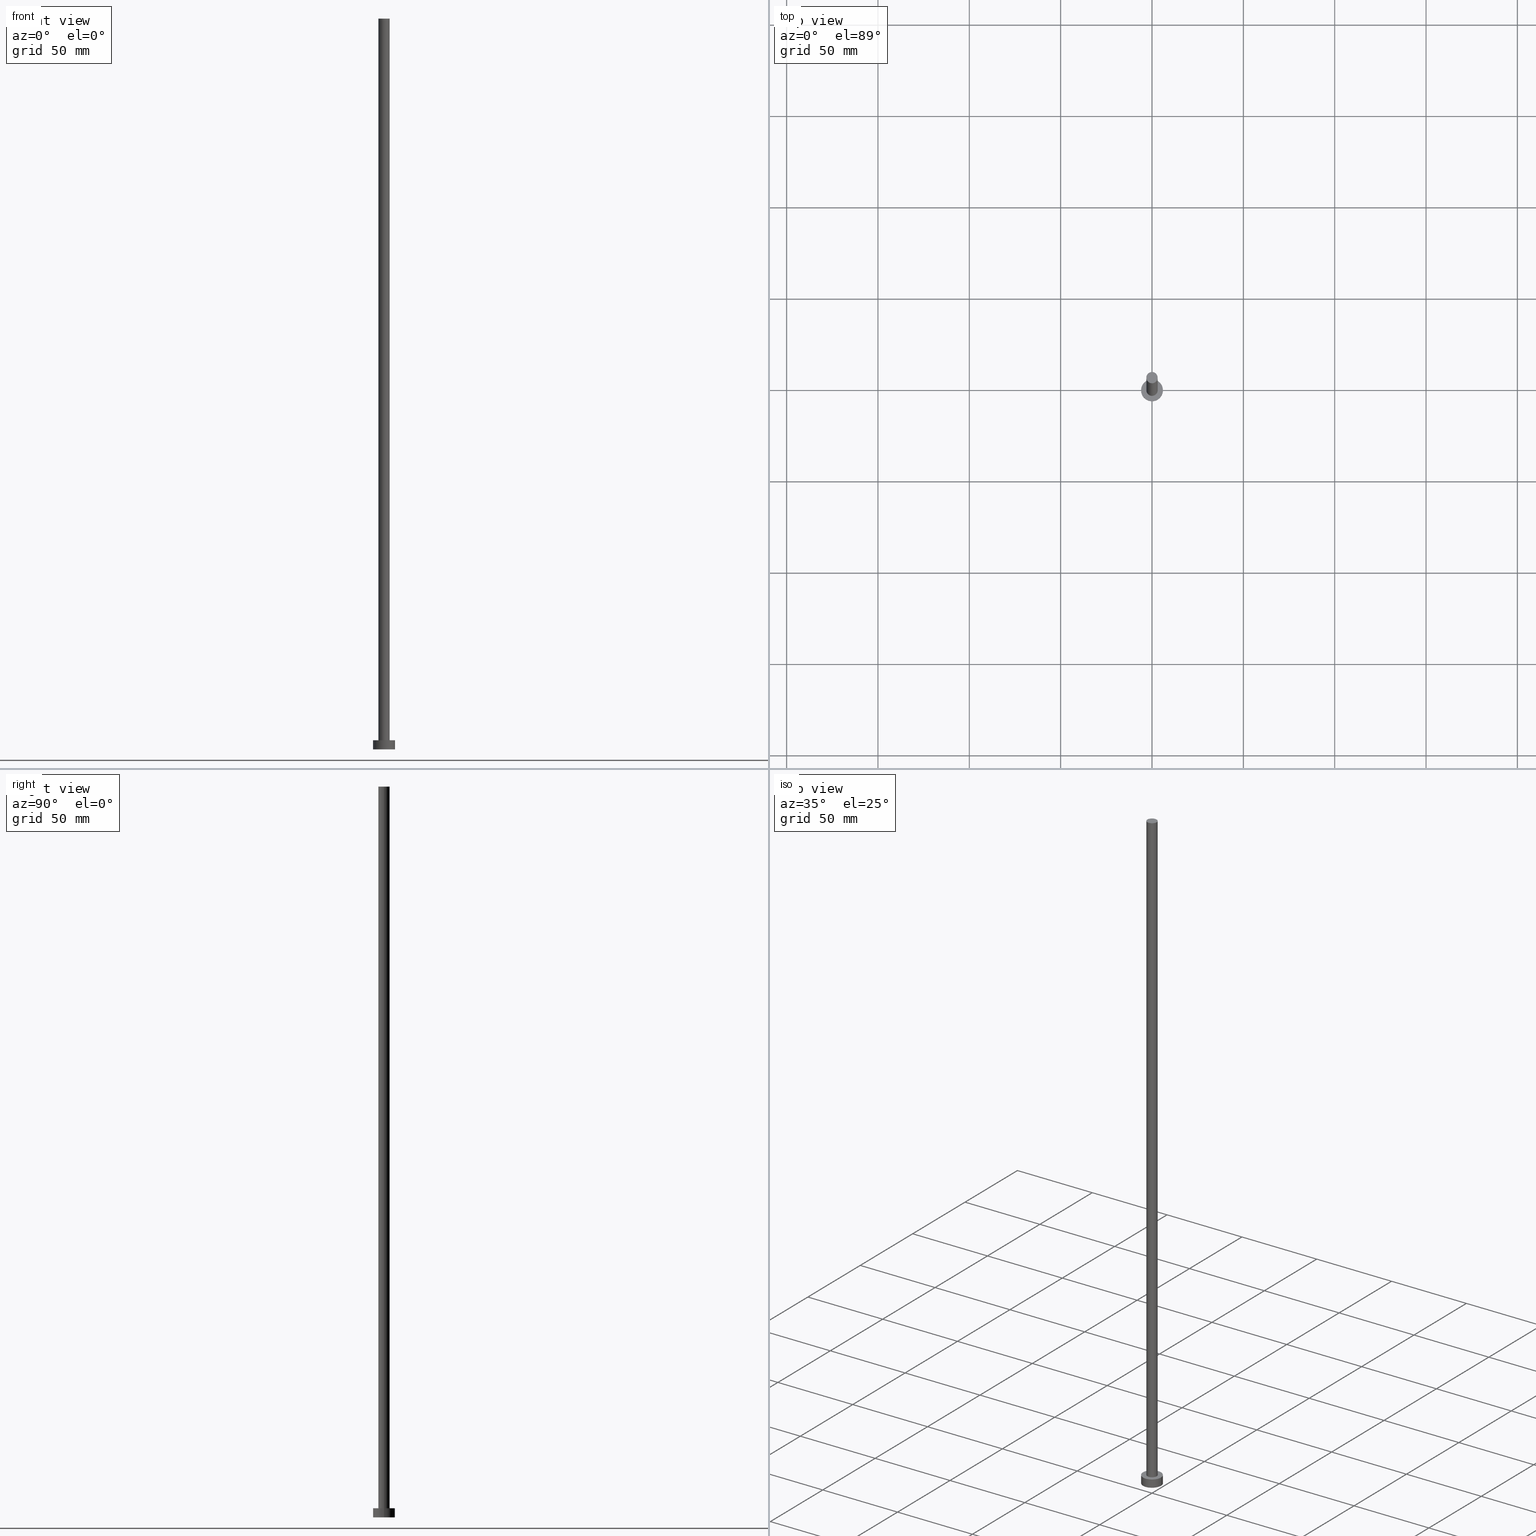
[diagram: canonical four-view strip — front | top / right | iso, engineering-drawing reading convention]
A machine part, canonical four-view strip (front | top / right | iso — engineering-drawing reading convention). The complete STEP part file that produces these views, byte-faithful:
ISO-10303-21;
HEADER;
FILE_DESCRIPTION (( 'STEP AP203' ),
    '1' );
FILE_NAME ('118b.STEP',
    '2023-02-13T12:35:11',
    ( '' ),
    ( '' ),
    'SwSTEP 2.0',
    'SolidWorks 2019',
    '' );
FILE_SCHEMA (( 'CONFIG_CONTROL_DESIGN' ));
ENDSEC;

DATA;
#1 = EDGE_LOOP ( 'NONE', ( #7, #201, #202, #82 ) ) ;
#2 = VECTOR ( 'NONE', #131, 1000.000000000000000 ) ;
#3 = PRODUCT ( '118b', '118b', '', ( #13 ) ) ;
#4 = LINE ( 'NONE', #10, #46 ) ;
#5 = VERTEX_POINT ( 'NONE', #47 ) ;
#6 = PERSON_AND_ORGANIZATION ( #57, #207 ) ;
#7 = ORIENTED_EDGE ( 'NONE', *, *, #162, .F. ) ;
#8 = APPROVAL ( #85, 'NEUR�EN�' ) ;
#9 = CALENDAR_DATE ( 2023, 13, 2 ) ;
#10 = CARTESIAN_POINT ( 'NONE',  ( -3.100000000000000089, 0.000000000000000000, 400.0000000000000000 ) ) ;
#11 = PERSON_AND_ORGANIZATION ( #57, #207 ) ;
#12 = ORIENTED_EDGE ( 'NONE', *, *, #97, .F. ) ;
#13 = MECHANICAL_CONTEXT ( 'NONE', #79, 'mechanical' ) ;
#14 = DIRECTION ( 'NONE',  ( -0.000000000000000000, -0.000000000000000000, -1.000000000000000000 ) ) ;
#15 = CC_DESIGN_APPROVAL ( #179, ( #159 ) ) ;
#16 = CC_DESIGN_PERSON_AND_ORGANIZATION_ASSIGNMENT ( #11, #62, ( #136 ) ) ;
#17 = CARTESIAN_POINT ( 'NONE',  ( 0.000000000000000000, 0.000000000000000000, 5.000000000000000000 ) ) ;
#18 = CC_DESIGN_PERSON_AND_ORGANIZATION_ASSIGNMENT ( #6, #83, ( #136 ) ) ;
#19 = DIRECTION ( 'NONE',  ( -0.000000000000000000, -0.000000000000000000, -1.000000000000000000 ) ) ;
#20 = APPROVAL_PERSON_ORGANIZATION ( #60, #8, #186 ) ;
#21 = LOCAL_TIME ( 13, 35, 11.00000000000000000, #142 ) ;
#22 = EDGE_CURVE ( 'NONE', #138, #5, #156, .T. ) ;
#23 = VERTEX_POINT ( 'NONE', #248 ) ;
#24 = CIRCLE ( 'NONE', #255, 6.000000000000000888 ) ;
#25 = EDGE_LOOP ( 'NONE', ( #68, #204 ) ) ;
#26 = ADVANCED_FACE ( 'NONE', ( #135 ), #128, .T. ) ;
#27 = CIRCLE ( 'NONE', #196, 3.100000000000000089 ) ;
#28 = ORIENTED_EDGE ( 'NONE', *, *, #253, .T. ) ;
#29 =( NAMED_UNIT ( * ) SI_UNIT ( $, .STERADIAN. ) SOLID_ANGLE_UNIT ( ) );
#30 = CARTESIAN_POINT ( 'NONE',  ( 0.000000000000000000, 0.000000000000000000, 400.0000000000000000 ) ) ;
#31 = DIRECTION ( 'NONE',  ( -1.000000000000000000, 0.000000000000000000, 0.000000000000000000 ) ) ;
#32 = DATE_TIME_ROLE ( 'classification_date' ) ;
#33 = ADVANCED_FACE ( 'NONE', ( #59 ), #165, .T. ) ;
#34 = ORIENTED_EDGE ( 'NONE', *, *, #109, .T. ) ;
#35 = DIRECTION ( 'NONE',  ( -0.000000000000000000, -0.000000000000000000, -1.000000000000000000 ) ) ;
#36 = CIRCLE ( 'NONE', #95, 3.100000000000000089 ) ;
#37 = DIRECTION ( 'NONE',  ( 1.000000000000000000, 0.000000000000000000, 0.000000000000000000 ) ) ;
#38 = LINE ( 'NONE', #212, #67 ) ;
#39 = AXIS2_PLACEMENT_3D ( 'NONE', #108, #14, #194 ) ;
#40 = ADVANCED_FACE ( 'NONE', ( #104 ), #51, .T. ) ;
#41 = AXIS2_PLACEMENT_3D ( 'NONE', #187, #61, #124 ) ;
#42 = DIRECTION ( 'NONE',  ( 1.000000000000000000, 0.000000000000000000, 0.000000000000000000 ) ) ;
#43 = PERSON_AND_ORGANIZATION_ROLE ( 'classification_officer' ) ;
#44 = DIRECTION ( 'NONE',  ( 1.000000000000000000, 0.000000000000000000, -0.000000000000000000 ) ) ;
#45 = PERSON_AND_ORGANIZATION_ROLE ( 'design_owner' ) ;
#46 = VECTOR ( 'NONE', #80, 1000.000000000000000 ) ;
#47 = CARTESIAN_POINT ( 'NONE',  ( -3.100000000000000089, 0.000000000000000000, 5.000000000000000000 ) ) ;
#48 = DATE_AND_TIME ( #145, #216 ) ;
#49 = ORIENTED_EDGE ( 'NONE', *, *, #112, .T. ) ;
#50 = PERSON_AND_ORGANIZATION ( #57, #207 ) ;
#51 = CYLINDRICAL_SURFACE ( 'NONE', #220, 3.100000000000000089 ) ;
#52 = LINE ( 'NONE', #132, #99 ) ;
#53 = CARTESIAN_POINT ( 'NONE',  ( 3.100000000000000089, 3.796405077356793932E-16, 5.000000000000000000 ) ) ;
#54 = AXIS2_PLACEMENT_3D ( 'NONE', #129, #94, #37 ) ;
#55 = CARTESIAN_POINT ( 'NONE',  ( 0.000000000000000000, 0.000000000000000000, 400.0000000000000000 ) ) ;
#56 = APPROVAL ( #170, 'NEUR�EN�' ) ;
#57 = PERSON ( 'NEUR�EN�', 'NEUR�EN�', 'NEUR�EN�', ('NEUR�EN�'), ('NEUR�EN�'), ('NEUR�EN�') ) ;
#58 = AXIS2_PLACEMENT_3D ( 'NONE', #166, #81, #122 ) ;
#59 = FACE_OUTER_BOUND ( 'NONE', #245, .T. ) ;
#60 = PERSON_AND_ORGANIZATION ( #57, #207 ) ;
#61 = DIRECTION ( 'NONE',  ( 0.000000000000000000, 0.000000000000000000, 1.000000000000000000 ) ) ;
#62 = PERSON_AND_ORGANIZATION_ROLE ( 'design_supplier' ) ;
#63 = DIRECTION ( 'NONE',  ( -1.000000000000000000, 0.000000000000000000, 0.000000000000000000 ) ) ;
#64 = DATE_AND_TIME ( #139, #90 ) ;
#65 = PLANE ( 'NONE',  #227 ) ;
#66 = COORDINATED_UNIVERSAL_TIME_OFFSET ( 1, 0, .AHEAD. ) ;
#67 = VECTOR ( 'NONE', #35, 1000.000000000000000 ) ;
#68 = ORIENTED_EDGE ( 'NONE', *, *, #198, .T. ) ;
#69 = APPROVAL_DATE_TIME ( #251, #179 ) ;
#70 = DIRECTION ( 'NONE',  ( -0.000000000000000000, -0.000000000000000000, -1.000000000000000000 ) ) ;
#71 = CIRCLE ( 'NONE', #218, 6.000000000000000888 ) ;
#72 = CARTESIAN_POINT ( 'NONE',  ( -6.000000000000000888, 0.000000000000000000, 5.000000000000000000 ) ) ;
#73 = DIRECTION ( 'NONE',  ( -1.000000000000000000, 0.000000000000000000, 0.000000000000000000 ) ) ;
#74 = AXIS2_PLACEMENT_3D ( 'NONE', #55, #92, #214 ) ;
#75 = AXIS2_PLACEMENT_3D ( 'NONE', #184, #84, #44 ) ;
#76 = APPROVAL_PERSON_ORGANIZATION ( #50, #56, #243 ) ;
#77 = ORIENTED_EDGE ( 'NONE', *, *, #253, .F. ) ;
#78 = AXIS2_PLACEMENT_3D ( 'NONE', #140, #188, #102 ) ;
#79 = APPLICATION_CONTEXT ( 'configuration controlled 3d designs of mechanical parts and assemblies' ) ;
#80 = DIRECTION ( 'NONE',  ( -0.000000000000000000, -0.000000000000000000, -1.000000000000000000 ) ) ;
#81 = DIRECTION ( 'NONE',  ( 0.000000000000000000, 0.000000000000000000, 1.000000000000000000 ) ) ;
#82 = ORIENTED_EDGE ( 'NONE', *, *, #172, .F. ) ;
#83 = PERSON_AND_ORGANIZATION_ROLE ( 'creator' ) ;
#84 = DIRECTION ( 'NONE',  ( 0.000000000000000000, 0.000000000000000000, 1.000000000000000000 ) ) ;
#85 = APPROVAL_STATUS ( 'not_yet_approved' ) ;
#86 = DIRECTION ( 'NONE',  ( 0.000000000000000000, 0.000000000000000000, 1.000000000000000000 ) ) ;
#87 = PERSON_AND_ORGANIZATION_ROLE ( 'creator' ) ;
#88 = EDGE_LOOP ( 'NONE', ( #161, #224, #226, #250 ) ) ;
#89 = COORDINATED_UNIVERSAL_TIME_OFFSET ( 1, 0, .AHEAD. ) ;
#90 = LOCAL_TIME ( 13, 35, 11.00000000000000000, #103 ) ;
#91 = FACE_OUTER_BOUND ( 'NONE', #1, .T. ) ;
#92 = DIRECTION ( 'NONE',  ( 0.000000000000000000, 0.000000000000000000, 1.000000000000000000 ) ) ;
#93 = CARTESIAN_POINT ( 'NONE',  ( 6.000000000000000888, 7.347880794884120722E-16, 0.000000000000000000 ) ) ;
#94 = DIRECTION ( 'NONE',  ( 0.000000000000000000, 0.000000000000000000, 1.000000000000000000 ) ) ;
#95 = AXIS2_PLACEMENT_3D ( 'NONE', #17, #175, #197 ) ;
#96 = PRODUCT_DEFINITION ( 'NEZN�M�', '', #136, #217 ) ;
#97 = EDGE_CURVE ( 'NONE', #167, #219, #105, .T. ) ;
#98 = DIRECTION ( 'NONE',  ( -0.000000000000000000, -0.000000000000000000, -1.000000000000000000 ) ) ;
#99 = VECTOR ( 'NONE', #70, 1000.000000000000000 ) ;
#100 = APPLICATION_PROTOCOL_DEFINITION ( 'international standard', 'config_control_design', 1994, #79 ) ;
#101 = VERTEX_POINT ( 'NONE', #211 ) ;
#102 = DIRECTION ( 'NONE',  ( 1.000000000000000000, 0.000000000000000000, 0.000000000000000000 ) ) ;
#103 = COORDINATED_UNIVERSAL_TIME_OFFSET ( 1, 0, .AHEAD. ) ;
#104 = FACE_OUTER_BOUND ( 'NONE', #134, .T. ) ;
#105 = CIRCLE ( 'NONE', #78, 6.000000000000000888 ) ;
#106 = APPROVAL_ROLE ( '' ) ;
#107 = CYLINDRICAL_SURFACE ( 'NONE', #39, 3.100000000000000089 ) ;
#108 = CARTESIAN_POINT ( 'NONE',  ( 0.000000000000000000, 0.000000000000000000, 400.0000000000000000 ) ) ;
#109 = EDGE_CURVE ( 'NONE', #101, #5, #4, .T. ) ;
#110 = CYLINDRICAL_SURFACE ( 'NONE', #199, 6.000000000000000888 ) ;
#111 = FACE_OUTER_BOUND ( 'NONE', #118, .T. ) ;
#112 = EDGE_CURVE ( 'NONE', #123, #101, #27, .T. ) ;
#113 = CC_DESIGN_PERSON_AND_ORGANIZATION_ASSIGNMENT ( #127, #87, ( #96 ) ) ;
#114 = ADVANCED_FACE ( 'NONE', ( #169, #121 ), #65, .T. ) ;
#115 = AXIS2_PLACEMENT_3D ( 'NONE', #240, #98, #31 ) ;
#116 = ORIENTED_EDGE ( 'NONE', *, *, #158, .T. ) ;
#117 = LOCAL_TIME ( 13, 35, 11.00000000000000000, #89 ) ;
#118 = EDGE_LOOP ( 'NONE', ( #143, #147, #34, #28 ) ) ;
#119 = EDGE_CURVE ( 'NONE', #23, #167, #126, .T. ) ;
#120 = CIRCLE ( 'NONE', #74, 3.100000000000000089 ) ;
#121 = FACE_OUTER_BOUND ( 'NONE', #25, .T. ) ;
#122 = DIRECTION ( 'NONE',  ( 1.000000000000000000, 0.000000000000000000, 0.000000000000000000 ) ) ;
#123 = VERTEX_POINT ( 'NONE', #174 ) ;
#124 = DIRECTION ( 'NONE',  ( 1.000000000000000000, 0.000000000000000000, 0.000000000000000000 ) ) ;
#125 =( NAMED_UNIT ( * ) PLANE_ANGLE_UNIT ( ) SI_UNIT ( $, .RADIAN. ) );
#126 = LINE ( 'NONE', #209, #2 ) ;
#127 = PERSON_AND_ORGANIZATION ( #57, #207 ) ;
#128 = CYLINDRICAL_SURFACE ( 'NONE', #115, 6.000000000000000888 ) ;
#129 = CARTESIAN_POINT ( 'NONE',  ( 0.000000000000000000, 0.000000000000000000, 5.000000000000000000 ) ) ;
#130 = ADVANCED_FACE ( 'NONE', ( #150 ), #176, .F. ) ;
#131 = DIRECTION ( 'NONE',  ( -0.000000000000000000, -0.000000000000000000, -1.000000000000000000 ) ) ;
#132 = CARTESIAN_POINT ( 'NONE',  ( 3.100000000000000089, 3.796405077356793932E-16, 400.0000000000000000 ) ) ;
#133 = ORIENTED_EDGE ( 'NONE', *, *, #109, .F. ) ;
#134 = EDGE_LOOP ( 'NONE', ( #206, #116, #154, #133 ) ) ;
#135 = FACE_OUTER_BOUND ( 'NONE', #88, .T. ) ;
#136 = PRODUCT_DEFINITION_FORMATION_WITH_SPECIFIED_SOURCE ( 'LIBOVOLN�', '', #3, .NOT_KNOWN. ) ;
#137 = APPROVAL_DATE_TIME ( #231, #8 ) ;
#138 = VERTEX_POINT ( 'NONE', #53 ) ;
#139 = CALENDAR_DATE ( 2023, 13, 2 ) ;
#140 = CARTESIAN_POINT ( 'NONE',  ( 0.000000000000000000, 0.000000000000000000, 0.000000000000000000 ) ) ;
#141 = CLOSED_SHELL ( 'NONE', ( #40, #189, #26, #114, #130, #238, #33 ) ) ;
#142 = COORDINATED_UNIVERSAL_TIME_OFFSET ( 1, 0, .AHEAD. ) ;
#143 = ORIENTED_EDGE ( 'NONE', *, *, #158, .F. ) ;
#144 = CC_DESIGN_APPROVAL ( #8, ( #136 ) ) ;
#145 = CALENDAR_DATE ( 2023, 13, 2 ) ;
#146 = CC_DESIGN_DATE_AND_TIME_ASSIGNMENT ( #48, #32, ( #159 ) ) ;
#147 = ORIENTED_EDGE ( 'NONE', *, *, #200, .F. ) ;
#148 = SHAPE_DEFINITION_REPRESENTATION ( #153, #160 ) ;
#149 = DIRECTION ( 'NONE',  ( 0.000000000000000000, 0.000000000000000000, 1.000000000000000000 ) ) ;
#150 = FACE_OUTER_BOUND ( 'NONE', #171, .T. ) ;
#151 = CARTESIAN_POINT ( 'NONE',  ( 0.000000000000000000, 0.000000000000000000, 5.000000000000000000 ) ) ;
#152 = CC_DESIGN_SECURITY_CLASSIFICATION ( #159, ( #136 ) ) ;
#153 = PRODUCT_DEFINITION_SHAPE ( 'NONE', 'NONE',  #96 ) ;
#154 = ORIENTED_EDGE ( 'NONE', *, *, #22, .T. ) ;
#155 = EDGE_CURVE ( 'NONE', #219, #167, #71, .T. ) ;
#156 = CIRCLE ( 'NONE', #41, 3.100000000000000089 ) ;
#157 = ORIENTED_EDGE ( 'NONE', *, *, #200, .T. ) ;
#158 = EDGE_CURVE ( 'NONE', #123, #138, #52, .T. ) ;
#159 = SECURITY_CLASSIFICATION ( '', '', #210 ) ;
#160 = ADVANCED_BREP_SHAPE_REPRESENTATION ( '118b', ( #164, #58 ), #244 ) ;
#161 = ORIENTED_EDGE ( 'NONE', *, *, #119, .F. ) ;
#162 = EDGE_CURVE ( 'NONE', #23, #182, #177, .T. ) ;
#163 = DATE_TIME_ROLE ( 'creation_date' ) ;
#164 = MANIFOLD_SOLID_BREP ( 'P�idat vysunut�m3', #141 ) ;
#165 = PLANE ( 'NONE',  #75 ) ;
#166 = CARTESIAN_POINT ( 'NONE',  ( 0.000000000000000000, 0.000000000000000000, 0.000000000000000000 ) ) ;
#167 = VERTEX_POINT ( 'NONE', #93 ) ;
#168 = COORDINATED_UNIVERSAL_TIME_OFFSET ( 1, 0, .AHEAD. ) ;
#169 = FACE_BOUND ( 'NONE', #190, .T. ) ;
#170 = APPROVAL_STATUS ( 'not_yet_approved' ) ;
#171 = EDGE_LOOP ( 'NONE', ( #239, #12 ) ) ;
#172 = EDGE_CURVE ( 'NONE', #182, #219, #38, .T. ) ;
#173 = CALENDAR_DATE ( 2023, 13, 2 ) ;
#174 = CARTESIAN_POINT ( 'NONE',  ( 3.100000000000000089, 3.796405077356793932E-16, 400.0000000000000000 ) ) ;
#175 = DIRECTION ( 'NONE',  ( 0.000000000000000000, 0.000000000000000000, 1.000000000000000000 ) ) ;
#176 = PLANE ( 'NONE',  #183 ) ;
#177 = CIRCLE ( 'NONE', #54, 6.000000000000000888 ) ;
#178 = CARTESIAN_POINT ( 'NONE',  ( -6.000000000000000888, 0.000000000000000000, 0.000000000000000000 ) ) ;
#179 = APPROVAL ( #246, 'NEUR�EN�' ) ;
#180 = APPROVAL_PERSON_ORGANIZATION ( #191, #179, #106 ) ;
#181 = UNCERTAINTY_MEASURE_WITH_UNIT (LENGTH_MEASURE( 1.000000000000000082E-05 ), #208, 'distance_accuracy_value', 'NONE');
#182 = VERTEX_POINT ( 'NONE', #72 ) ;
#183 = AXIS2_PLACEMENT_3D ( 'NONE', #233, #149, #252 ) ;
#184 = CARTESIAN_POINT ( 'NONE',  ( 0.000000000000000000, 0.000000000000000000, 400.0000000000000000 ) ) ;
#185 = DIRECTION ( 'NONE',  ( 0.000000000000000000, 0.000000000000000000, 1.000000000000000000 ) ) ;
#186 = APPROVAL_ROLE ( '' ) ;
#187 = CARTESIAN_POINT ( 'NONE',  ( 0.000000000000000000, 0.000000000000000000, 5.000000000000000000 ) ) ;
#188 = DIRECTION ( 'NONE',  ( 0.000000000000000000, 0.000000000000000000, 1.000000000000000000 ) ) ;
#189 = ADVANCED_FACE ( 'NONE', ( #91 ), #110, .T. ) ;
#190 = EDGE_LOOP ( 'NONE', ( #77, #230 ) ) ;
#191 = PERSON_AND_ORGANIZATION ( #57, #207 ) ;
#192 = DIRECTION ( 'NONE',  ( 0.000000000000000000, 0.000000000000000000, 1.000000000000000000 ) ) ;
#193 = APPLICATION_PROTOCOL_DEFINITION ( 'international standard', 'config_control_design', 1994, #242 ) ;
#194 = DIRECTION ( 'NONE',  ( -1.000000000000000000, 0.000000000000000000, 0.000000000000000000 ) ) ;
#195 = DIRECTION ( 'NONE',  ( 0.000000000000000000, 0.000000000000000000, 1.000000000000000000 ) ) ;
#196 = AXIS2_PLACEMENT_3D ( 'NONE', #222, #86, #42 ) ;
#197 = DIRECTION ( 'NONE',  ( 1.000000000000000000, 0.000000000000000000, 0.000000000000000000 ) ) ;
#198 = EDGE_CURVE ( 'NONE', #182, #23, #24, .T. ) ;
#199 = AXIS2_PLACEMENT_3D ( 'NONE', #254, #19, #73 ) ;
#200 = EDGE_CURVE ( 'NONE', #101, #123, #120, .T. ) ;
#201 = ORIENTED_EDGE ( 'NONE', *, *, #119, .T. ) ;
#202 = ORIENTED_EDGE ( 'NONE', *, *, #97, .T. ) ;
#203 = CARTESIAN_POINT ( 'NONE',  ( 0.000000000000000000, 0.000000000000000000, 5.000000000000000000 ) ) ;
#204 = ORIENTED_EDGE ( 'NONE', *, *, #162, .T. ) ;
#205 = DATE_AND_TIME ( #9, #21 ) ;
#206 = ORIENTED_EDGE ( 'NONE', *, *, #112, .F. ) ;
#207 = ORGANIZATION ( 'NEUR�EN�', 'NEUR�EN�', '' ) ;
#208 =( LENGTH_UNIT ( ) NAMED_UNIT ( * ) SI_UNIT ( .MILLI., .METRE. ) );
#209 = CARTESIAN_POINT ( 'NONE',  ( 6.000000000000000888, 7.347880794884120722E-16, 5.000000000000000000 ) ) ;
#210 = SECURITY_CLASSIFICATION_LEVEL ( 'unclassified' ) ;
#211 = CARTESIAN_POINT ( 'NONE',  ( -3.100000000000000089, 0.000000000000000000, 400.0000000000000000 ) ) ;
#212 = CARTESIAN_POINT ( 'NONE',  ( -6.000000000000000888, 0.000000000000000000, 5.000000000000000000 ) ) ;
#213 = DIRECTION ( 'NONE',  ( 1.000000000000000000, 0.000000000000000000, 0.000000000000000000 ) ) ;
#214 = DIRECTION ( 'NONE',  ( 1.000000000000000000, 0.000000000000000000, 0.000000000000000000 ) ) ;
#215 = PRODUCT_RELATED_PRODUCT_CATEGORY ( 'detail', '', ( #3 ) ) ;
#216 = LOCAL_TIME ( 13, 35, 11.00000000000000000, #168 ) ;
#217 = DESIGN_CONTEXT ( 'detailed design', #242, 'design' ) ;
#218 = AXIS2_PLACEMENT_3D ( 'NONE', #232, #195, #213 ) ;
#219 = VERTEX_POINT ( 'NONE', #178 ) ;
#220 = AXIS2_PLACEMENT_3D ( 'NONE', #30, #247, #63 ) ;
#221 = LOCAL_TIME ( 13, 35, 11.00000000000000000, #66 ) ;
#222 = CARTESIAN_POINT ( 'NONE',  ( 0.000000000000000000, 0.000000000000000000, 400.0000000000000000 ) ) ;
#223 = PERSON_AND_ORGANIZATION ( #57, #207 ) ;
#224 = ORIENTED_EDGE ( 'NONE', *, *, #198, .F. ) ;
#225 = APPROVAL_DATE_TIME ( #64, #56 ) ;
#226 = ORIENTED_EDGE ( 'NONE', *, *, #172, .T. ) ;
#227 = AXIS2_PLACEMENT_3D ( 'NONE', #203, #185, #229 ) ;
#228 = CALENDAR_DATE ( 2023, 13, 2 ) ;
#229 = DIRECTION ( 'NONE',  ( 1.000000000000000000, 0.000000000000000000, -0.000000000000000000 ) ) ;
#230 = ORIENTED_EDGE ( 'NONE', *, *, #22, .F. ) ;
#231 = DATE_AND_TIME ( #228, #221 ) ;
#232 = CARTESIAN_POINT ( 'NONE',  ( 0.000000000000000000, 0.000000000000000000, 0.000000000000000000 ) ) ;
#233 = CARTESIAN_POINT ( 'NONE',  ( 0.000000000000000000, 0.000000000000000000, 0.000000000000000000 ) ) ;
#234 = CC_DESIGN_APPROVAL ( #56, ( #96 ) ) ;
#235 = DIRECTION ( 'NONE',  ( 1.000000000000000000, 0.000000000000000000, 0.000000000000000000 ) ) ;
#236 = CC_DESIGN_PERSON_AND_ORGANIZATION_ASSIGNMENT ( #223, #43, ( #159 ) ) ;
#237 = CC_DESIGN_DATE_AND_TIME_ASSIGNMENT ( #205, #163, ( #96 ) ) ;
#238 = ADVANCED_FACE ( 'NONE', ( #111 ), #107, .T. ) ;
#239 = ORIENTED_EDGE ( 'NONE', *, *, #155, .F. ) ;
#240 = CARTESIAN_POINT ( 'NONE',  ( 0.000000000000000000, 0.000000000000000000, 5.000000000000000000 ) ) ;
#241 = CC_DESIGN_PERSON_AND_ORGANIZATION_ASSIGNMENT ( #249, #45, ( #3 ) ) ;
#242 = APPLICATION_CONTEXT ( 'configuration controlled 3d designs of mechanical parts and assemblies' ) ;
#243 = APPROVAL_ROLE ( '' ) ;
#244 =( GEOMETRIC_REPRESENTATION_CONTEXT ( 3 ) GLOBAL_UNCERTAINTY_ASSIGNED_CONTEXT ( ( #181 ) ) GLOBAL_UNIT_ASSIGNED_CONTEXT ( ( #208, #125, #29 ) ) REPRESENTATION_CONTEXT ( 'NONE', 'WORKASPACE' ) );
#245 = EDGE_LOOP ( 'NONE', ( #157, #49 ) ) ;
#246 = APPROVAL_STATUS ( 'not_yet_approved' ) ;
#247 = DIRECTION ( 'NONE',  ( -0.000000000000000000, -0.000000000000000000, -1.000000000000000000 ) ) ;
#248 = CARTESIAN_POINT ( 'NONE',  ( 6.000000000000000888, 7.347880794884120722E-16, 5.000000000000000000 ) ) ;
#249 = PERSON_AND_ORGANIZATION ( #57, #207 ) ;
#250 = ORIENTED_EDGE ( 'NONE', *, *, #155, .T. ) ;
#251 = DATE_AND_TIME ( #173, #117 ) ;
#252 = DIRECTION ( 'NONE',  ( 1.000000000000000000, 0.000000000000000000, -0.000000000000000000 ) ) ;
#253 = EDGE_CURVE ( 'NONE', #5, #138, #36, .T. ) ;
#254 = CARTESIAN_POINT ( 'NONE',  ( 0.000000000000000000, 0.000000000000000000, 5.000000000000000000 ) ) ;
#255 = AXIS2_PLACEMENT_3D ( 'NONE', #151, #192, #235 ) ;
ENDSEC;
END-ISO-10303-21;
